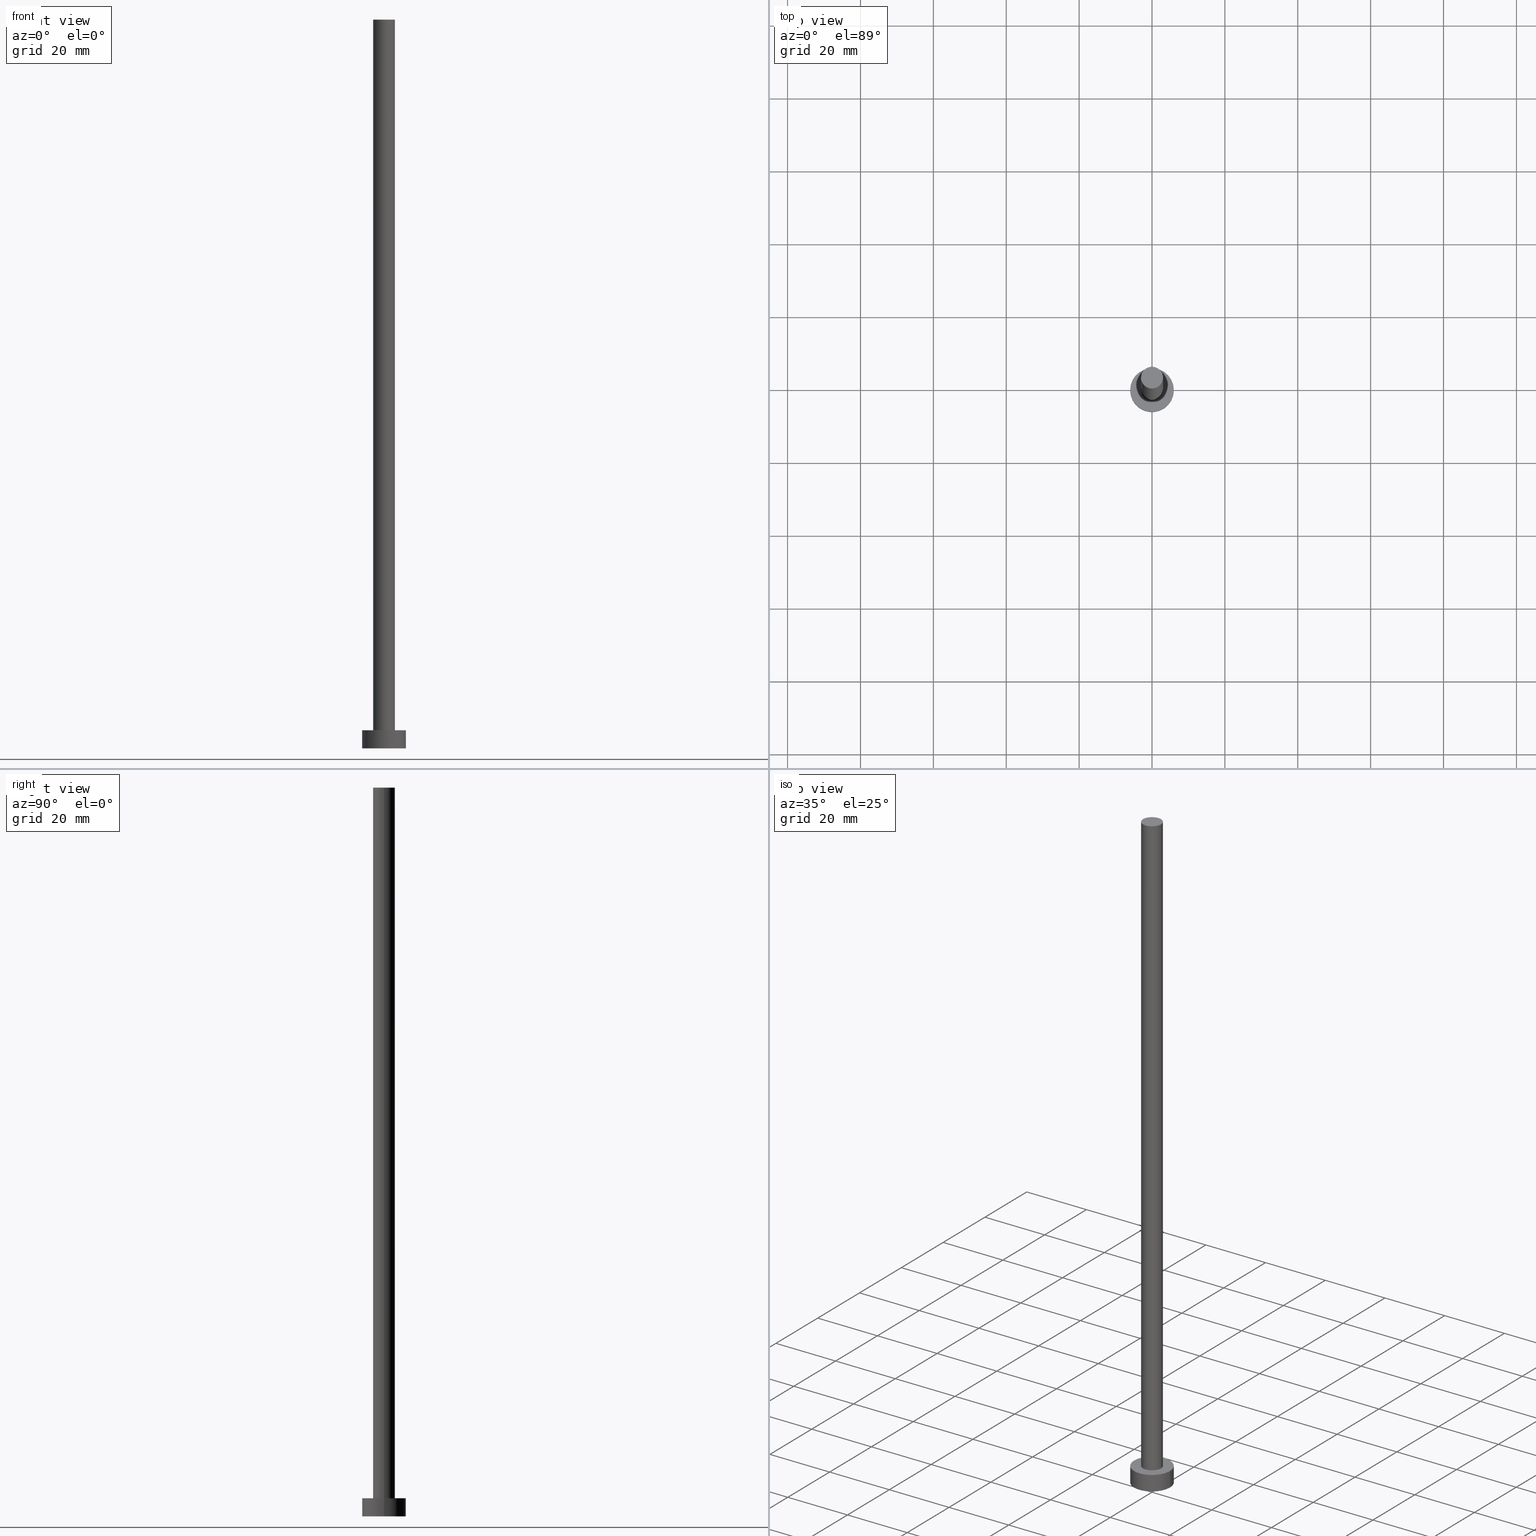
[diagram: canonical four-view strip — front | top / right | iso, engineering-drawing reading convention]
A machine part, canonical four-view strip (front | top / right | iso — engineering-drawing reading convention). The complete STEP part file that produces these views, byte-faithful:
ISO-10303-21;
HEADER;
FILE_DESCRIPTION (( 'STEP AP203' ),
    '1' );
FILE_NAME ('ce3b.STEP',
    '2023-02-13T15:22:17',
    ( '' ),
    ( '' ),
    'SwSTEP 2.0',
    'SolidWorks 2019',
    '' );
FILE_SCHEMA (( 'CONFIG_CONTROL_DESIGN' ));
ENDSEC;

DATA;
#1 = APPROVAL_DATE_TIME ( #95, #167 ) ;
#2 = COORDINATED_UNIVERSAL_TIME_OFFSET ( 1, 0, .AHEAD. ) ;
#3 = CC_DESIGN_PERSON_AND_ORGANIZATION_ASSIGNMENT ( #191, #149, ( #9 ) ) ;
#4 = EDGE_LOOP ( 'NONE', ( #126, #37 ) ) ;
#5 = AXIS2_PLACEMENT_3D ( 'NONE', #107, #127, #34 ) ;
#6 = DIRECTION ( 'NONE',  ( -1.000000000000000000, 0.000000000000000000, 0.000000000000000000 ) ) ;
#7 = ADVANCED_FACE ( 'NONE', ( #148 ), #100, .T. ) ;
#8 = AXIS2_PLACEMENT_3D ( 'NONE', #135, #15, #190 ) ;
#9 = PRODUCT_DEFINITION_FORMATION_WITH_SPECIFIED_SOURCE ( 'LIBOVOLN�', '', #60, .NOT_KNOWN. ) ;
#10 = DATE_AND_TIME ( #211, #56 ) ;
#11 = CARTESIAN_POINT ( 'NONE',  ( 0.000000000000000000, 0.000000000000000000, 5.000000000000000000 ) ) ;
#12 = CARTESIAN_POINT ( 'NONE',  ( 0.000000000000000000, 0.000000000000000000, 200.0000000000000000 ) ) ;
#13 = APPROVAL_DATE_TIME ( #193, #62 ) ;
#14 = ADVANCED_FACE ( 'NONE', ( #29 ), #45, .F. ) ;
#15 = DIRECTION ( 'NONE',  ( 0.000000000000000000, 0.000000000000000000, 1.000000000000000000 ) ) ;
#16 = APPROVAL_PERSON_ORGANIZATION ( #156, #79, #128 ) ;
#17 = CARTESIAN_POINT ( 'NONE',  ( 3.000000000000000444, 3.673940397442060361E-16, 5.000000000000000000 ) ) ;
#18 = DIRECTION ( 'NONE',  ( 0.000000000000000000, 0.000000000000000000, 1.000000000000000000 ) ) ;
#19 = AXIS2_PLACEMENT_3D ( 'NONE', #65, #213, #133 ) ;
#20 = MECHANICAL_CONTEXT ( 'NONE', #250, 'mechanical' ) ;
#21 = ORIENTED_EDGE ( 'NONE', *, *, #112, .F. ) ;
#22 = ORIENTED_EDGE ( 'NONE', *, *, #146, .F. ) ;
#23 = DIRECTION ( 'NONE',  ( 0.000000000000000000, 0.000000000000000000, 1.000000000000000000 ) ) ;
#24 = DATE_AND_TIME ( #201, #77 ) ;
#25 = CC_DESIGN_PERSON_AND_ORGANIZATION_ASSIGNMENT ( #214, #153, ( #180 ) ) ;
#26 = ORIENTED_EDGE ( 'NONE', *, *, #199, .T. ) ;
#27 = MANIFOLD_SOLID_BREP ( 'P�idat vysunut�m3', #219 ) ;
#28 = CIRCLE ( 'NONE', #168, 6.000000000000000888 ) ;
#29 = FACE_OUTER_BOUND ( 'NONE', #4, .T. ) ;
#30 = VERTEX_POINT ( 'NONE', #176 ) ;
#31 = LINE ( 'NONE', #90, #206 ) ;
#32 = PERSON_AND_ORGANIZATION_ROLE ( 'design_supplier' ) ;
#33 = CARTESIAN_POINT ( 'NONE',  ( -3.000000000000000444, 0.000000000000000000, 200.0000000000000000 ) ) ;
#34 = DIRECTION ( 'NONE',  ( 1.000000000000000000, 0.000000000000000000, -0.000000000000000000 ) ) ;
#35 = FACE_OUTER_BOUND ( 'NONE', #224, .T. ) ;
#36 = PRODUCT_RELATED_PRODUCT_CATEGORY ( 'detail', '', ( #60 ) ) ;
#37 = ORIENTED_EDGE ( 'NONE', *, *, #134, .F. ) ;
#38 = EDGE_CURVE ( 'NONE', #169, #30, #182, .T. ) ;
#39 = ADVANCED_FACE ( 'NONE', ( #251 ), #87, .T. ) ;
#40 = DIRECTION ( 'NONE',  ( -0.000000000000000000, -0.000000000000000000, -1.000000000000000000 ) ) ;
#41 = VERTEX_POINT ( 'NONE', #188 ) ;
#42 = ORIENTED_EDGE ( 'NONE', *, *, #112, .T. ) ;
#43 = LOCAL_TIME ( 16, 22, 17.00000000000000000, #173 ) ;
#44 = DIRECTION ( 'NONE',  ( -0.000000000000000000, -0.000000000000000000, -1.000000000000000000 ) ) ;
#45 = PLANE ( 'NONE',  #5 ) ;
#46 = ADVANCED_FACE ( 'NONE', ( #231 ), #249, .T. ) ;
#47 = DIRECTION ( 'NONE',  ( 1.000000000000000000, 0.000000000000000000, 0.000000000000000000 ) ) ;
#48 = DIRECTION ( 'NONE',  ( 1.000000000000000000, 0.000000000000000000, -0.000000000000000000 ) ) ;
#49 = DIRECTION ( 'NONE',  ( -0.000000000000000000, -0.000000000000000000, -1.000000000000000000 ) ) ;
#50 = AXIS2_PLACEMENT_3D ( 'NONE', #69, #181, #110 ) ;
#51 = CC_DESIGN_DATE_AND_TIME_ASSIGNMENT ( #10, #227, ( #180 ) ) ;
#52 = VERTEX_POINT ( 'NONE', #194 ) ;
#53 = APPLICATION_PROTOCOL_DEFINITION ( 'international standard', 'config_control_design', 1994, #250 ) ;
#54 = ORIENTED_EDGE ( 'NONE', *, *, #225, .F. ) ;
#55 = APPLICATION_PROTOCOL_DEFINITION ( 'international standard', 'config_control_design', 1994, #119 ) ;
#56 = LOCAL_TIME ( 16, 22, 17.00000000000000000, #230 ) ;
#57 = CARTESIAN_POINT ( 'NONE',  ( 3.000000000000000444, 3.673940397442060361E-16, 200.0000000000000000 ) ) ;
#58 = CC_DESIGN_PERSON_AND_ORGANIZATION_ASSIGNMENT ( #75, #76, ( #252 ) ) ;
#59 = ORIENTED_EDGE ( 'NONE', *, *, #38, .F. ) ;
#60 = PRODUCT ( 'ce3b', 'ce3b', '', ( #20 ) ) ;
#61 = EDGE_LOOP ( 'NONE', ( #255, #121 ) ) ;
#62 = APPROVAL ( #117, 'NEUR�EN�' ) ;
#63 = VERTEX_POINT ( 'NONE', #235 ) ;
#64 = CC_DESIGN_SECURITY_CLASSIFICATION ( #180, ( #9 ) ) ;
#65 = CARTESIAN_POINT ( 'NONE',  ( 0.000000000000000000, 0.000000000000000000, 5.000000000000000000 ) ) ;
#66 = COORDINATED_UNIVERSAL_TIME_OFFSET ( 1, 0, .AHEAD. ) ;
#67 = DIRECTION ( 'NONE',  ( 1.000000000000000000, 0.000000000000000000, 0.000000000000000000 ) ) ;
#68 = CALENDAR_DATE ( 2023, 13, 2 ) ;
#69 = CARTESIAN_POINT ( 'NONE',  ( 0.000000000000000000, 0.000000000000000000, 200.0000000000000000 ) ) ;
#70 = VECTOR ( 'NONE', #196, 1000.000000000000000 ) ;
#71 = DIRECTION ( 'NONE',  ( 0.000000000000000000, 0.000000000000000000, 1.000000000000000000 ) ) ;
#72 = AXIS2_PLACEMENT_3D ( 'NONE', #174, #44, #83 ) ;
#73 = DIRECTION ( 'NONE',  ( 1.000000000000000000, 0.000000000000000000, 0.000000000000000000 ) ) ;
#74 = DIRECTION ( 'NONE',  ( 1.000000000000000000, 0.000000000000000000, 0.000000000000000000 ) ) ;
#75 = PERSON_AND_ORGANIZATION ( #165, #102 ) ;
#76 = PERSON_AND_ORGANIZATION_ROLE ( 'creator' ) ;
#77 = LOCAL_TIME ( 16, 22, 17.00000000000000000, #116 ) ;
#78 = ADVANCED_FACE ( 'NONE', ( #234 ), #229, .T. ) ;
#79 = APPROVAL ( #175, 'NEUR�EN�' ) ;
#80 = ORIENTED_EDGE ( 'NONE', *, *, #92, .T. ) ;
#81 = CC_DESIGN_PERSON_AND_ORGANIZATION_ASSIGNMENT ( #183, #239, ( #60 ) ) ;
#82 = PERSON_AND_ORGANIZATION ( #165, #102 ) ;
#83 = DIRECTION ( 'NONE',  ( -1.000000000000000000, 0.000000000000000000, 0.000000000000000000 ) ) ;
#84 = AXIS2_PLACEMENT_3D ( 'NONE', #253, #105, #73 ) ;
#85 = APPROVAL_PERSON_ORGANIZATION ( #143, #167, #220 ) ;
#86 = CALENDAR_DATE ( 2023, 13, 2 ) ;
#87 = PLANE ( 'NONE',  #247 ) ;
#88 = AXIS2_PLACEMENT_3D ( 'NONE', #108, #151, #47 ) ;
#89 = DIRECTION ( 'NONE',  ( -0.000000000000000000, -0.000000000000000000, -1.000000000000000000 ) ) ;
#90 = CARTESIAN_POINT ( 'NONE',  ( -6.000000000000000888, 0.000000000000000000, 5.000000000000000000 ) ) ;
#91 = CARTESIAN_POINT ( 'NONE',  ( 0.000000000000000000, 0.000000000000000000, 5.000000000000000000 ) ) ;
#92 = EDGE_CURVE ( 'NONE', #164, #99, #139, .T. ) ;
#93 = CIRCLE ( 'NONE', #88, 6.000000000000000888 ) ;
#94 = LINE ( 'NONE', #57, #70 ) ;
#95 = DATE_AND_TIME ( #145, #155 ) ;
#96 = ORIENTED_EDGE ( 'NONE', *, *, #123, .F. ) ;
#97 = DATE_TIME_ROLE ( 'creation_date' ) ;
#98 = EDGE_LOOP ( 'NONE', ( #54, #59, #244, #80 ) ) ;
#99 = VERTEX_POINT ( 'NONE', #17 ) ;
#100 = CYLINDRICAL_SURFACE ( 'NONE', #200, 3.000000000000000444 ) ;
#101 = EDGE_CURVE ( 'NONE', #238, #63, #28, .T. ) ;
#102 = ORGANIZATION ( 'NEUR�EN�', 'NEUR�EN�', '' ) ;
#103 = ORIENTED_EDGE ( 'NONE', *, *, #134, .T. ) ;
#104 = DIRECTION ( 'NONE',  ( -0.000000000000000000, -0.000000000000000000, -1.000000000000000000 ) ) ;
#105 = DIRECTION ( 'NONE',  ( 0.000000000000000000, 0.000000000000000000, 1.000000000000000000 ) ) ;
#106 = APPROVAL_DATE_TIME ( #246, #79 ) ;
#107 = CARTESIAN_POINT ( 'NONE',  ( 0.000000000000000000, 0.000000000000000000, 0.000000000000000000 ) ) ;
#108 = CARTESIAN_POINT ( 'NONE',  ( 0.000000000000000000, 0.000000000000000000, 0.000000000000000000 ) ) ;
#109 = CC_DESIGN_DATE_AND_TIME_ASSIGNMENT ( #24, #97, ( #252 ) ) ;
#110 = DIRECTION ( 'NONE',  ( 1.000000000000000000, 0.000000000000000000, 0.000000000000000000 ) ) ;
#111 = DIRECTION ( 'NONE',  ( 1.000000000000000000, 0.000000000000000000, -0.000000000000000000 ) ) ;
#112 = EDGE_CURVE ( 'NONE', #238, #52, #31, .T. ) ;
#113 =( NAMED_UNIT ( * ) SI_UNIT ( $, .STERADIAN. ) SOLID_ANGLE_UNIT ( ) );
#114 = AXIS2_PLACEMENT_3D ( 'NONE', #222, #18, #74 ) ;
#115 = CARTESIAN_POINT ( 'NONE',  ( 0.000000000000000000, 0.000000000000000000, 5.000000000000000000 ) ) ;
#116 = COORDINATED_UNIVERSAL_TIME_OFFSET ( 1, 0, .AHEAD. ) ;
#117 = APPROVAL_STATUS ( 'not_yet_approved' ) ;
#118 = CC_DESIGN_PERSON_AND_ORGANIZATION_ASSIGNMENT ( #82, #32, ( #9 ) ) ;
#119 = APPLICATION_CONTEXT ( 'configuration controlled 3d designs of mechanical parts and assemblies' ) ;
#120 = CIRCLE ( 'NONE', #8, 6.000000000000000888 ) ;
#121 = ORIENTED_EDGE ( 'NONE', *, *, #197, .F. ) ;
#122 = CARTESIAN_POINT ( 'NONE',  ( 0.000000000000000000, 0.000000000000000000, 200.0000000000000000 ) ) ;
#123 = EDGE_CURVE ( 'NONE', #169, #164, #129, .T. ) ;
#124 = APPROVAL_PERSON_ORGANIZATION ( #186, #62, #132 ) ;
#125 = ORIENTED_EDGE ( 'NONE', *, *, #199, .F. ) ;
#126 = ORIENTED_EDGE ( 'NONE', *, *, #177, .F. ) ;
#127 = DIRECTION ( 'NONE',  ( 0.000000000000000000, 0.000000000000000000, 1.000000000000000000 ) ) ;
#128 = APPROVAL_ROLE ( '' ) ;
#129 = LINE ( 'NONE', #178, #223 ) ;
#130 = LOCAL_TIME ( 16, 22, 17.00000000000000000, #66 ) ;
#131 = PRODUCT_DEFINITION_SHAPE ( 'NONE', 'NONE',  #252 ) ;
#132 = APPROVAL_ROLE ( '' ) ;
#133 = DIRECTION ( 'NONE',  ( 1.000000000000000000, 0.000000000000000000, 0.000000000000000000 ) ) ;
#134 = EDGE_CURVE ( 'NONE', #41, #52, #93, .T. ) ;
#135 = CARTESIAN_POINT ( 'NONE',  ( 0.000000000000000000, 0.000000000000000000, 0.000000000000000000 ) ) ;
#136 = CARTESIAN_POINT ( 'NONE',  ( 0.000000000000000000, 0.000000000000000000, 200.0000000000000000 ) ) ;
#137 =( LENGTH_UNIT ( ) NAMED_UNIT ( * ) SI_UNIT ( .MILLI., .METRE. ) );
#138 = ORIENTED_EDGE ( 'NONE', *, *, #38, .T. ) ;
#139 = CIRCLE ( 'NONE', #19, 3.000000000000000444 ) ;
#140 = APPROVAL_STATUS ( 'not_yet_approved' ) ;
#141 = DESIGN_CONTEXT ( 'detailed design', #119, 'design' ) ;
#142 = ORIENTED_EDGE ( 'NONE', *, *, #146, .T. ) ;
#143 = PERSON_AND_ORGANIZATION ( #165, #102 ) ;
#144 = CC_DESIGN_APPROVAL ( #62, ( #9 ) ) ;
#145 = CALENDAR_DATE ( 2023, 13, 2 ) ;
#146 = EDGE_CURVE ( 'NONE', #30, #169, #242, .T. ) ;
#147 = AXIS2_PLACEMENT_3D ( 'NONE', #152, #104, #6 ) ;
#148 = FACE_OUTER_BOUND ( 'NONE', #98, .T. ) ;
#149 = PERSON_AND_ORGANIZATION_ROLE ( 'creator' ) ;
#150 = ORIENTED_EDGE ( 'NONE', *, *, #101, .F. ) ;
#151 = DIRECTION ( 'NONE',  ( 0.000000000000000000, 0.000000000000000000, 1.000000000000000000 ) ) ;
#152 = CARTESIAN_POINT ( 'NONE',  ( 0.000000000000000000, 0.000000000000000000, 5.000000000000000000 ) ) ;
#153 = PERSON_AND_ORGANIZATION_ROLE ( 'classification_officer' ) ;
#154 = DIRECTION ( 'NONE',  ( 1.000000000000000000, 0.000000000000000000, 0.000000000000000000 ) ) ;
#155 = LOCAL_TIME ( 16, 22, 17.00000000000000000, #2 ) ;
#156 = PERSON_AND_ORGANIZATION ( #165, #102 ) ;
#157 = DIRECTION ( 'NONE',  ( 0.000000000000000000, 0.000000000000000000, 1.000000000000000000 ) ) ;
#158 = AXIS2_PLACEMENT_3D ( 'NONE', #12, #157, #154 ) ;
#159 = DIRECTION ( 'NONE',  ( -0.000000000000000000, -0.000000000000000000, -1.000000000000000000 ) ) ;
#160 = EDGE_CURVE ( 'NONE', #63, #238, #204, .T. ) ;
#161 = CIRCLE ( 'NONE', #232, 3.000000000000000444 ) ;
#162 =( GEOMETRIC_REPRESENTATION_CONTEXT ( 3 ) GLOBAL_UNCERTAINTY_ASSIGNED_CONTEXT ( ( #241 ) ) GLOBAL_UNIT_ASSIGNED_CONTEXT ( ( #137, #218, #113 ) ) REPRESENTATION_CONTEXT ( 'NONE', 'WORKASPACE' ) );
#163 = DIRECTION ( 'NONE',  ( -1.000000000000000000, 0.000000000000000000, 0.000000000000000000 ) ) ;
#164 = VERTEX_POINT ( 'NONE', #215 ) ;
#165 = PERSON ( 'NEUR�EN�', 'NEUR�EN�', 'NEUR�EN�', ('NEUR�EN�'), ('NEUR�EN�'), ('NEUR�EN�') ) ;
#166 = PLANE ( 'NONE',  #189 ) ;
#167 = APPROVAL ( #140, 'NEUR�EN�' ) ;
#168 = AXIS2_PLACEMENT_3D ( 'NONE', #91, #71, #245 ) ;
#169 = VERTEX_POINT ( 'NONE', #33 ) ;
#170 = ORIENTED_EDGE ( 'NONE', *, *, #225, .T. ) ;
#171 = EDGE_LOOP ( 'NONE', ( #138, #142 ) ) ;
#172 = EDGE_LOOP ( 'NONE', ( #125, #150, #42, #185 ) ) ;
#173 = COORDINATED_UNIVERSAL_TIME_OFFSET ( 1, 0, .AHEAD. ) ;
#174 = CARTESIAN_POINT ( 'NONE',  ( 0.000000000000000000, 0.000000000000000000, 5.000000000000000000 ) ) ;
#175 = APPROVAL_STATUS ( 'not_yet_approved' ) ;
#176 = CARTESIAN_POINT ( 'NONE',  ( 3.000000000000000444, 3.673940397442060361E-16, 200.0000000000000000 ) ) ;
#177 = EDGE_CURVE ( 'NONE', #52, #41, #120, .T. ) ;
#178 = CARTESIAN_POINT ( 'NONE',  ( -3.000000000000000444, 0.000000000000000000, 200.0000000000000000 ) ) ;
#179 = LINE ( 'NONE', #216, #205 ) ;
#180 = SECURITY_CLASSIFICATION ( '', '', #187 ) ;
#181 = DIRECTION ( 'NONE',  ( 0.000000000000000000, 0.000000000000000000, 1.000000000000000000 ) ) ;
#182 = CIRCLE ( 'NONE', #158, 3.000000000000000444 ) ;
#183 = PERSON_AND_ORGANIZATION ( #165, #102 ) ;
#184 = ORIENTED_EDGE ( 'NONE', *, *, #160, .T. ) ;
#185 = ORIENTED_EDGE ( 'NONE', *, *, #177, .T. ) ;
#186 = PERSON_AND_ORGANIZATION ( #165, #102 ) ;
#187 = SECURITY_CLASSIFICATION_LEVEL ( 'unclassified' ) ;
#188 = CARTESIAN_POINT ( 'NONE',  ( 6.000000000000000888, 7.347880794884120722E-16, 0.000000000000000000 ) ) ;
#189 = AXIS2_PLACEMENT_3D ( 'NONE', #115, #23, #111 ) ;
#190 = DIRECTION ( 'NONE',  ( 1.000000000000000000, 0.000000000000000000, 0.000000000000000000 ) ) ;
#191 = PERSON_AND_ORGANIZATION ( #165, #102 ) ;
#192 = DIRECTION ( 'NONE',  ( 0.000000000000000000, 0.000000000000000000, 1.000000000000000000 ) ) ;
#193 = DATE_AND_TIME ( #86, #130 ) ;
#194 = CARTESIAN_POINT ( 'NONE',  ( -6.000000000000000888, 0.000000000000000000, 0.000000000000000000 ) ) ;
#195 = AXIS2_PLACEMENT_3D ( 'NONE', #136, #217, #163 ) ;
#196 = DIRECTION ( 'NONE',  ( -0.000000000000000000, -0.000000000000000000, -1.000000000000000000 ) ) ;
#197 = EDGE_CURVE ( 'NONE', #99, #164, #161, .T. ) ;
#198 = ORIENTED_EDGE ( 'NONE', *, *, #160, .F. ) ;
#199 = EDGE_CURVE ( 'NONE', #63, #41, #179, .T. ) ;
#200 = AXIS2_PLACEMENT_3D ( 'NONE', #122, #40, #207 ) ;
#201 = CALENDAR_DATE ( 2023, 13, 2 ) ;
#202 = ORIENTED_EDGE ( 'NONE', *, *, #101, .T. ) ;
#203 = ADVANCED_FACE ( 'NONE', ( #35 ), #237, .T. ) ;
#204 = CIRCLE ( 'NONE', #84, 6.000000000000000888 ) ;
#205 = VECTOR ( 'NONE', #159, 1000.000000000000000 ) ;
#206 = VECTOR ( 'NONE', #49, 1000.000000000000000 ) ;
#207 = DIRECTION ( 'NONE',  ( -1.000000000000000000, 0.000000000000000000, 0.000000000000000000 ) ) ;
#208 = ADVANCED_BREP_SHAPE_REPRESENTATION ( 'ce3b', ( #27, #114 ), #162 ) ;
#209 = ORIENTED_EDGE ( 'NONE', *, *, #197, .T. ) ;
#210 = EDGE_LOOP ( 'NONE', ( #202, #184 ) ) ;
#211 = CALENDAR_DATE ( 2023, 13, 2 ) ;
#212 = CARTESIAN_POINT ( 'NONE',  ( 0.000000000000000000, 0.000000000000000000, 200.0000000000000000 ) ) ;
#213 = DIRECTION ( 'NONE',  ( 0.000000000000000000, 0.000000000000000000, 1.000000000000000000 ) ) ;
#214 = PERSON_AND_ORGANIZATION ( #165, #102 ) ;
#215 = CARTESIAN_POINT ( 'NONE',  ( -3.000000000000000444, 0.000000000000000000, 5.000000000000000000 ) ) ;
#216 = CARTESIAN_POINT ( 'NONE',  ( 6.000000000000000888, 7.347880794884120722E-16, 5.000000000000000000 ) ) ;
#217 = DIRECTION ( 'NONE',  ( -0.000000000000000000, -0.000000000000000000, -1.000000000000000000 ) ) ;
#218 =( NAMED_UNIT ( * ) PLANE_ANGLE_UNIT ( ) SI_UNIT ( $, .RADIAN. ) );
#219 = CLOSED_SHELL ( 'NONE', ( #203, #46, #78, #236, #14, #7, #39 ) ) ;
#220 = APPROVAL_ROLE ( '' ) ;
#221 = FACE_BOUND ( 'NONE', #61, .T. ) ;
#222 = CARTESIAN_POINT ( 'NONE',  ( 0.000000000000000000, 0.000000000000000000, 0.000000000000000000 ) ) ;
#223 = VECTOR ( 'NONE', #89, 1000.000000000000000 ) ;
#224 = EDGE_LOOP ( 'NONE', ( #22, #170, #209, #96 ) ) ;
#225 = EDGE_CURVE ( 'NONE', #30, #99, #94, .T. ) ;
#226 = CC_DESIGN_APPROVAL ( #79, ( #180 ) ) ;
#227 = DATE_TIME_ROLE ( 'classification_date' ) ;
#228 = EDGE_LOOP ( 'NONE', ( #198, #26, #103, #21 ) ) ;
#229 = CYLINDRICAL_SURFACE ( 'NONE', #72, 6.000000000000000888 ) ;
#230 = COORDINATED_UNIVERSAL_TIME_OFFSET ( 1, 0, .AHEAD. ) ;
#231 = FACE_OUTER_BOUND ( 'NONE', #228, .T. ) ;
#232 = AXIS2_PLACEMENT_3D ( 'NONE', #11, #248, #67 ) ;
#233 = SHAPE_DEFINITION_REPRESENTATION ( #131, #208 ) ;
#234 = FACE_OUTER_BOUND ( 'NONE', #172, .T. ) ;
#235 = CARTESIAN_POINT ( 'NONE',  ( 6.000000000000000888, 7.347880794884120722E-16, 5.000000000000000000 ) ) ;
#236 = ADVANCED_FACE ( 'NONE', ( #221, #240 ), #166, .T. ) ;
#237 = CYLINDRICAL_SURFACE ( 'NONE', #195, 3.000000000000000444 ) ;
#238 = VERTEX_POINT ( 'NONE', #254 ) ;
#239 = PERSON_AND_ORGANIZATION_ROLE ( 'design_owner' ) ;
#240 = FACE_OUTER_BOUND ( 'NONE', #210, .T. ) ;
#241 = UNCERTAINTY_MEASURE_WITH_UNIT (LENGTH_MEASURE( 1.000000000000000082E-05 ), #137, 'distance_accuracy_value', 'NONE');
#242 = CIRCLE ( 'NONE', #50, 3.000000000000000444 ) ;
#243 = CC_DESIGN_APPROVAL ( #167, ( #252 ) ) ;
#244 = ORIENTED_EDGE ( 'NONE', *, *, #123, .T. ) ;
#245 = DIRECTION ( 'NONE',  ( 1.000000000000000000, 0.000000000000000000, 0.000000000000000000 ) ) ;
#246 = DATE_AND_TIME ( #68, #43 ) ;
#247 = AXIS2_PLACEMENT_3D ( 'NONE', #212, #192, #48 ) ;
#248 = DIRECTION ( 'NONE',  ( 0.000000000000000000, 0.000000000000000000, 1.000000000000000000 ) ) ;
#249 = CYLINDRICAL_SURFACE ( 'NONE', #147, 6.000000000000000888 ) ;
#250 = APPLICATION_CONTEXT ( 'configuration controlled 3d designs of mechanical parts and assemblies' ) ;
#251 = FACE_OUTER_BOUND ( 'NONE', #171, .T. ) ;
#252 = PRODUCT_DEFINITION ( 'NEZN�M�', '', #9, #141 ) ;
#253 = CARTESIAN_POINT ( 'NONE',  ( 0.000000000000000000, 0.000000000000000000, 5.000000000000000000 ) ) ;
#254 = CARTESIAN_POINT ( 'NONE',  ( -6.000000000000000888, 0.000000000000000000, 5.000000000000000000 ) ) ;
#255 = ORIENTED_EDGE ( 'NONE', *, *, #92, .F. ) ;
ENDSEC;
END-ISO-10303-21;
